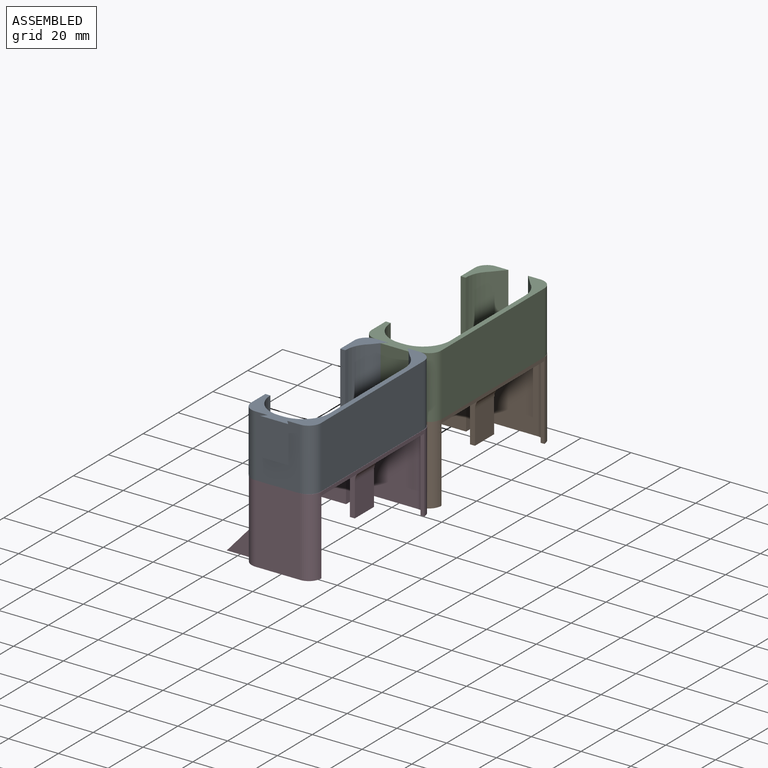
[diagram: assembled view]
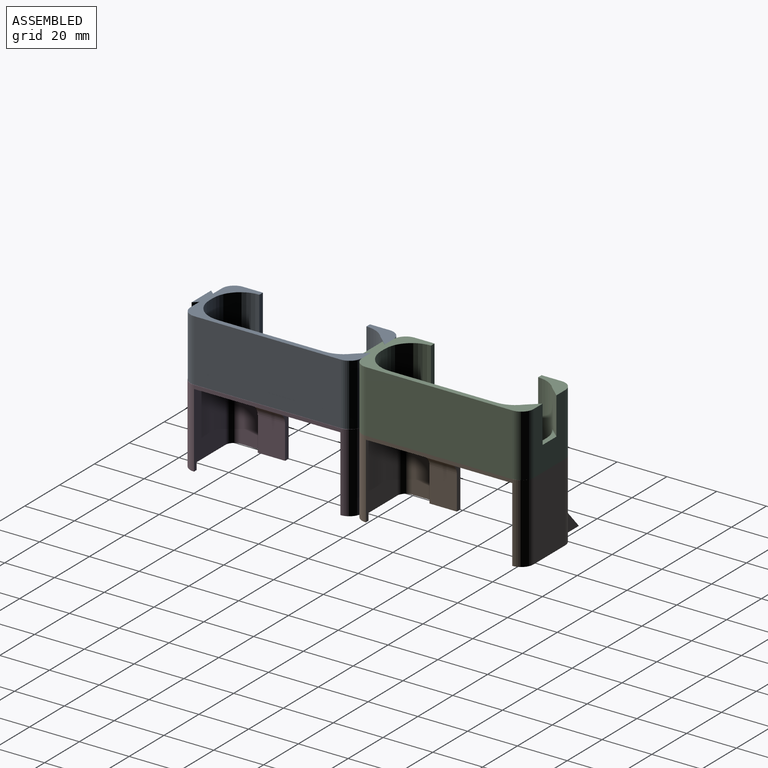
[diagram: assembled view, second angle]
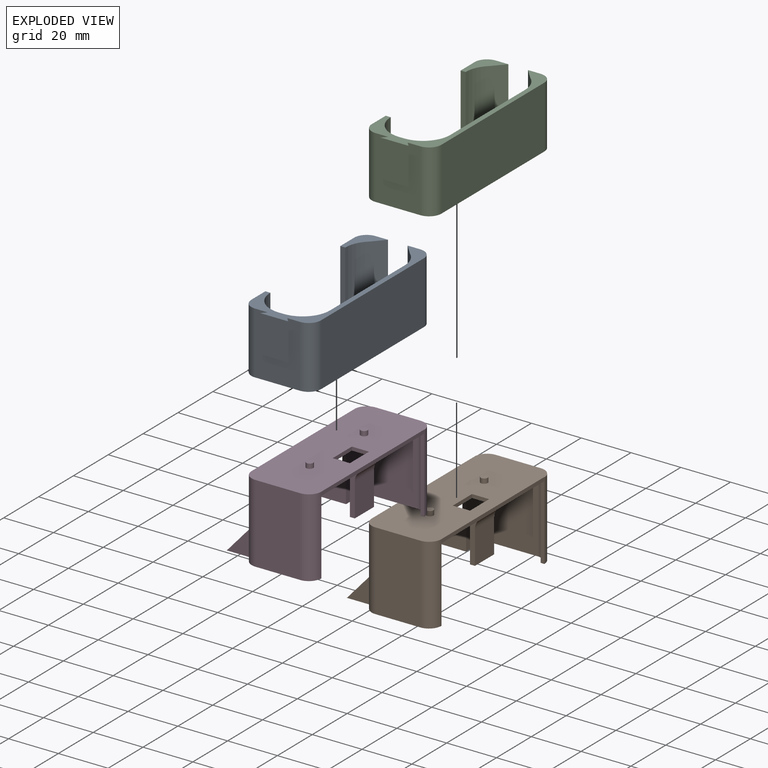
[diagram: exploded view]
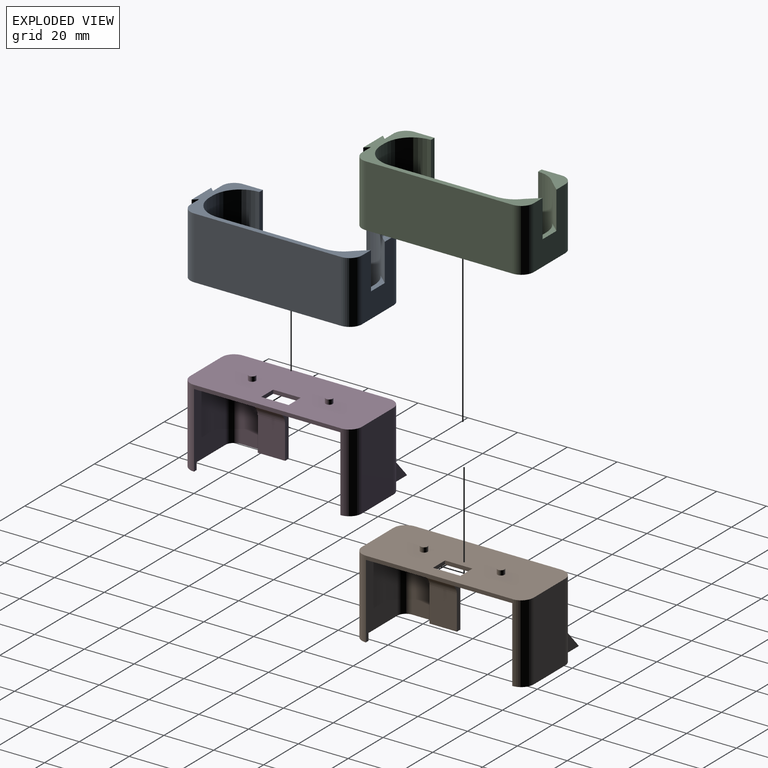
[diagram: exploded view, second angle]
ASSEMBLY  parts=4 mates=3
PART A: 36 faces, bbox 28x70.9x25 mm
  f0: plane 70.9x28mm, normal (0,0,1), area 303.4mm2, adj f2,f3,f8,f9,f10,f11,f12,f14
  f1: plane 8x2mm, normal (0,-1,0), area 16mm2, adj f3,f7,f19,f31
  f2: plane 25x18mm, normal (0,1,0), area 331.5mm2, adj f0,f4,f6,f13,f16,f29,f30,f31
  f3: cylinder r=11mm len=23mm, axis (0,0,-1), area 282.4mm2, adj f0,f1,f7,f12,f30,f31
  f4: plane 13x10.05mm, normal (0,0,1), area 58.1mm2, adj f2,f5,f13,f19,f26,f29
  f5: plane 25x8mm, normal (-1,0,0), area 200mm2, adj f4,f6,f13,f26
  f6: plane 69x28mm, normal (0,0,-1), area 1734.5mm2, adj f2,f5,f8,f9,f10,f13,f14,f15
  f7: plane 65x24mm, normal (0,0,1), area 1366.1mm2, adj f1,f3,f11,f12,f17,f18,f19,f20
  f8: plane 25x8mm, normal (-1,0,0), area 200mm2, adj f0,f6,f14,f24
  f9: plane 25x18mm, normal (0,-1,0), area 333mm2, adj f0,f6,f14,f15,f32,f34,f35
  f10: plane 59x25mm, normal (1,0,0), area 1475mm2, adj f0,f6,f15,f16
  f11: plane 23x2mm, normal (0,1,0), area 46mm2, adj f0,f7,f17,f18
  f12: plane 43x23mm, normal (-1,0,0), area 989mm2, adj f0,f3,f7,f17
  f13: cylinder r=5mm len=25mm, axis (0,0,-1), area 196.3mm2, adj f2,f4,f5,f6
  f14: cylinder r=5mm len=25mm, axis (0,0,1), area 196.3mm2, adj f0,f6,f8,f9
  f15: cylinder r=5mm len=25mm, axis (0,0,-1), area 196.3mm2, adj f0,f6,f9,f10
  f16: cylinder r=5mm len=25mm, axis (0,0,1), area 196.3mm2, adj f0,f2,f6,f10
  f17: cylinder r=11mm len=23mm, axis (0,0,1), area 397.4mm2, adj f0,f7,f11,f12
  f18: cylinder r=11mm len=23mm, axis (0,0,-1), area 397.4mm2, adj f0,f7,f11,f24
  f19: cylinder r=11mm len=23mm, axis (0,0,1), area 282.4mm2, adj f1,f4,f7,f26,f29,f31
  f20: plane 6.9x2mm, normal (0,-1,0), area 13.8mm2, adj f6,f7,f21,f23
  f21: plane 11x2mm, normal (1,0,0), area 22mm2, adj f6,f7,f20,f22
  f22: plane 6.9x2mm, normal (0,1,0), area 13.8mm2, adj f6,f7,f21,f23
  f23: plane 11x2mm, normal (-1,0,0), area 22mm2, adj f6,f7,f20,f22
  f24: plane 25x2mm, normal (0,1,0), area 50mm2, adj f0,f6,f8,f18,f25
  f25: plane 43x2mm, normal (-1,0,0), area 86mm2, adj f6,f7,f24,f26
  f26: plane 25x2mm, normal (0,-1,0), area 50mm2, adj f4,f5,f6,f19,f25
  f27: cylinder r=1.5mm len=3mm, axis (0,0,1), area 18.8mm2, adj f6,f7
  f28: cylinder r=1.5mm len=3mm, axis (0,0,1), area 18.8mm2, adj f6,f7
  f29: plane 15x4.56mm, normal (0.74,-0.67,0), area 92.1mm2, adj f2,f4,f19,f31
  f30: plane 15x4.56mm, normal (-0.74,-0.67,0), area 92.1mm2, adj f0,f2,f3,f31
  f31: plane 16.12x4.56mm, normal (0,0,1), area 24.9mm2, adj f1,f2,f3,f19,f29,f30
  f32: plane 15x1.9mm, normal (-0.74,0.67,0), area 38.4mm2, adj f0,f9,f33,f35
  f33: plane 15x11.22mm, normal (0,-1,0), area 168.3mm2, adj f0,f32,f34,f35
  f34: plane 15x1.9mm, normal (0.74,0.67,0), area 38.4mm2, adj f0,f9,f33,f35
  f35: plane 11.22x1.9mm, normal (0,0,-1), area 18.1mm2, adj f9,f32,f33,f34
PART B: 43 faces, bbox 38.1x69x33.4 mm
  f0: plane 31.5x1.5mm, normal (0,1,0), area 45.2mm2, adj f1,f9,f10,f21,f25,f27
  f1: cylinder r=3.6mm len=30mm, axis (0,0,-1), area 169.6mm2, adj f0,f2,f10,f21
  f2: plane 30x18mm, normal (0,1,0), area 540mm2, adj f1,f3,f10,f21
  f3: cylinder r=3.5mm len=30mm, axis (0,0,-1), area 164.9mm2, adj f2,f4,f10,f21
  f4: plane 30x7mm, normal (1,0,0), area 210mm2, adj f3,f5,f10,f21
  f5: plane 30x11.5mm, normal (0,1,0), area 101.3mm2, adj f4,f6,f10,f21,f37,f42
  f6: plane 59x18.41mm, normal (-1,0,0), area 325.2mm2, adj f5,f7,f14,f15,f21,f27,f41,f42
  f7: cylinder r=5mm len=31.5mm, axis (0,0,-1), area 247.4mm2, adj f6,f8,f10,f27,f38
  f8: plane 31.5x18mm, normal (0,-1,0), area 567mm2, adj f7,f9,f10,f27
  f9: cylinder r=5.1mm len=31.5mm, axis (0,0,-1), area 252.3mm2, adj f0,f8,f10,f27
  f10: plane 38.1x12mm, normal (0,0,1), area 127.8mm2, adj f0,f1,f2,f3,f4,f5,f7,f8
  f11: plane 30x1.5mm, normal (0,-1,0), area 45mm2, adj f12,f19,f20,f21
  f12: cylinder r=5mm len=31.5mm, axis (0,0,-1), area 247.4mm2, adj f11,f13,f20,f25,f27
  f13: plane 31.5x18mm, normal (0,1,0), area 567mm2, adj f12,f14,f20,f27
  f14: cylinder r=5mm len=31.5mm, axis (0,0,-1), area 247.4mm2, adj f6,f13,f20,f27,f39
  f15: plane 30x11.5mm, normal (0,-1,0), area 101.3mm2, adj f6,f16,f20,f21,f40,f41
  f16: plane 30x7mm, normal (1,0,0), area 210mm2, adj f15,f17,f20,f21
  f17: cylinder r=3.5mm len=30mm, axis (0,0,-1), area 164.9mm2, adj f16,f18,f20,f21
  f18: plane 30x18mm, normal (0,-1,0), area 540mm2, adj f17,f19,f20,f21
  f19: cylinder r=3.5mm len=30mm, axis (0,0,-1), area 164.9mm2, adj f11,f18,f20,f21
  f20: plane 38x12mm, normal (0,0,1), area 127.5mm2, adj f11,f12,f13,f14,f15,f16,f17,f18
  f21: plane 66x28mm, normal (0,0,1), area 1664.6mm2, adj f0,f1,f2,f3,f4,f5,f6,f11
  f22: plane 6.9x1.5mm, normal (0,-1,0), area 10.4mm2, adj f21,f23,f26,f27
  f23: plane 19.5x11mm, normal (-1,0,0), area 214.5mm2, adj f22,f24,f27,f28,f30,f31
  f24: plane 6.9x1.5mm, normal (0,1,0), area 10.4mm2, adj f21,f23,f26,f27
  f25: plane 58.9x1.5mm, normal (1,0,0), area 88.3mm2, adj f0,f12,f21,f27,f32
  f26: plane 11x1.5mm, normal (1,0,0), area 16.5mm2, adj f21,f22,f24,f27
  f27: plane 69x28.1mm, normal (0,0,-1), area 1822.6mm2, adj f0,f6,f7,f8,f9,f12,f13,f14
  f28: plane 18x5mm, normal (0,-1,0), area 39.8mm2, adj f21,f23,f29,f31,f32
  f29: plane 13.42x11mm, normal (1,0,0), area 147.6mm2, adj f28,f30,f31,f32
  f30: plane 18x5mm, normal (0,1,0), area 39.8mm2, adj f21,f23,f29,f31,f32
  f31: plane 11x2mm, normal (0,0,1), area 22mm2, adj f23,f28,f29,f30
  f32: cylinder r=5mm len=11mm, axis (0,-1,0), area 63.8mm2, adj f25,f28,f29,f30
  f33: cylinder r=1.4mm len=2.8mm, axis (0,0,1), area 16.7mm2, adj f27,f34
  f34: plane 2.8x2.8mm, normal (0,0,-1), area 6.2mm2, adj f33
  f35: cylinder r=1.4mm len=2.8mm, axis (0,0,1), area 16.7mm2, adj f27,f36
  f36: plane 2.8x2.8mm, normal (0,0,-1), area 6.2mm2, adj f35
  f37: plane 9.76x8.73mm, normal (-0.75,0,-0.67), area 91.6mm2, adj f5,f10,f38,f42
  f38: plane 13.09x10mm, normal (0,-1,0), area 56.3mm2, adj f7,f10,f37,f42
  f39: plane 13.09x10mm, normal (0,1,0), area 56.3mm2, adj f14,f20,f40,f41
  f40: plane 9.76x8.73mm, normal (-0.75,0,-0.67), area 91.6mm2, adj f15,f20,f39,f41
  f41: cylinder r=5mm len=7mm, axis (0,-1,0), area 25.5mm2, adj f6,f15,f39,f40
  f42: cylinder r=5mm len=7mm, axis (0,-1,0), area 25.5mm2, adj f5,f6,f37,f38
PART C: same geometry as A
PART D: same geometry as B
PLACE A t=(14.94,-61.3,-2.73)mm
PLACE B rot(axis=(1,0,0),180deg) t=(65.91,-50.57,-4.13)mm
PLACE C t=(14.99,7.7,-2.73)mm
PLACE D rot(axis=(1,0,0),180deg) t=(65.96,-119.57,-4.13)mm
MATE fastened B.f33 <-> C.f27  axis (0,0,1) through (0.86,26,-0.73)mm
MATE fastened D.f35 <-> A.f28  axis (0,0,1) through (0.81,-74,-0.73)mm
MATE fastened A.f0 <-> C.f0  axis (0,0,1) through (4.76,-23.5,22.27)mm
